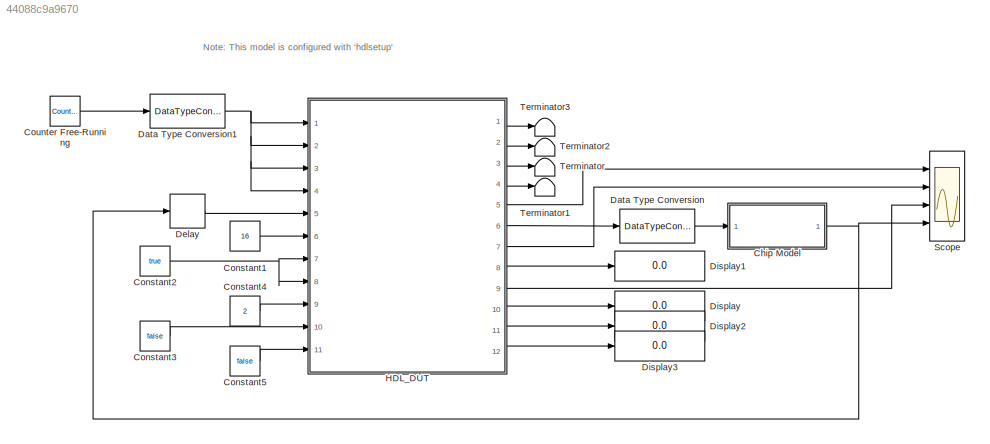
MODEL slx_44088c9a9670
KIND model
CONFIG AbsTol = auto
CONFIG EnableMultiTasking = off
CONFIG FixedStep = auto
CONFIG MaxStep = auto
CONFIG MinStep = auto
CONFIG RelTol = 1e-3
CONFIG SampleTimeConstraint = Unconstrained
CONFIG Solver = FixedStepDiscrete
CONFIG SolverName = FixedStepDiscrete
CONFIG StartTime = 0.0
CONFIG StopTime = 900*1
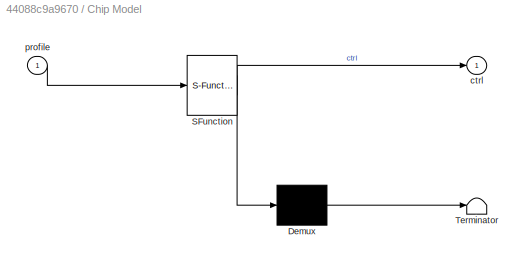
BLOCK [SubSystem] Chip Model
  ErrorFcn = Stateflow.Translate.translate
  PermitHierarchicalResolution = ExplicitOnly
  Ports = [1, 1]
  RequestExecContextInheritance = off
  SFBlockType = MATLAB Function
  TreatAsAtomicUnit = on
BLOCK [Demux] Chip Model/ Demux 
  Outputs = 1
  Ports = [1, 1]
BLOCK [S-Function] Chip Model/ SFunction 
  EnableBusSupport = on
  FunctionName = sf_sfun
  PortCounts = [1 2]
  Ports = [1, 2]
  SFcnIsStateOwnerBlock = off
  SFunctionDeploymentMode = off
  Tag = Stateflow S-Function frequency_hopping 3
BLOCK [Terminator] Chip Model/ Terminator 
BLOCK [Outport] Chip Model/ctrl
  IconDisplay = Port number
BLOCK [Inport] Chip Model/profile
  IconDisplay = Port number
BLOCK [Constant] Constant1
  OutDataTypeStr = fixdt(1,16,0)
  SampleTime = -1
  Value = 16
BLOCK [Constant] Constant2
  OutDataTypeStr = boolean
  SampleTime = -1
  Value = true
BLOCK [Constant] Constant3
  OutDataTypeStr = boolean
  SampleTime = -1
  Value = false
BLOCK [Constant] Constant4
  OutDataTypeStr = uint32
  SampleTime = -1
  Value = 2
BLOCK [Constant] Constant5
  OutDataTypeStr = boolean
  SampleTime = -1
  Value = false
BLOCK [Reference] Counter Free-Running  REF=simulink/Sources/Counter
Free-Running
  Ports = [0, 1]
  SourceBlock = simulink/Sources/Counter\nFree-Running
  SourceProductBaseCode = SL
  SourceProductName = Simulink
  SourceType = Counter Free-Running
BLOCK [DataTypeConversion] Data Type Conversion
  OutDataTypeStr = uint8
  RndMeth = Floor
  SaturateOnIntegerOverflow = off
BLOCK [DataTypeConversion] Data Type Conversion1
  OutDataTypeStr = int16
  RndMeth = Floor
  SaturateOnIntegerOverflow = off
BLOCK [Delay] Delay
  DelayLength = 1
  InputPortMap = u0
  Ports = [1, 1]
BLOCK [Display] Display
  Decimation = 1
  Ports = [1]
BLOCK [Display] Display1
  Decimation = 1
  Ports = [1]
BLOCK [Display] Display2
  Decimation = 1
  Ports = [1]
BLOCK [Display] Display3
  Decimation = 1
  Ports = [1]
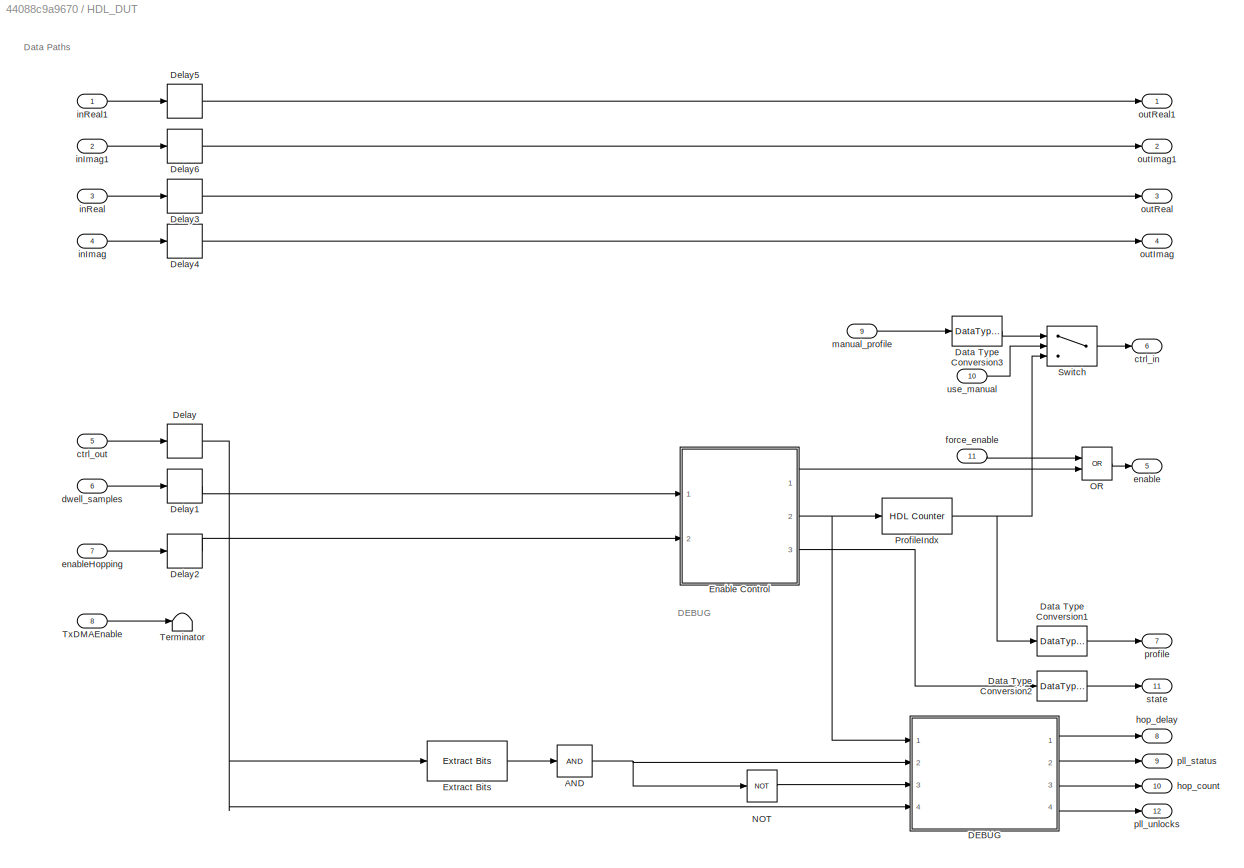
BLOCK [SubSystem] HDL_DUT
  Ports = [11, 12]
  RequestExecContextInheritance = off
  TreatAsAtomicUnit = on
BLOCK [Logic] HDL_DUT/AND
  AllPortsSameDT = off
  Inputs = 1
  OutDataTypeStr = boolean
  Ports = [1, 1]
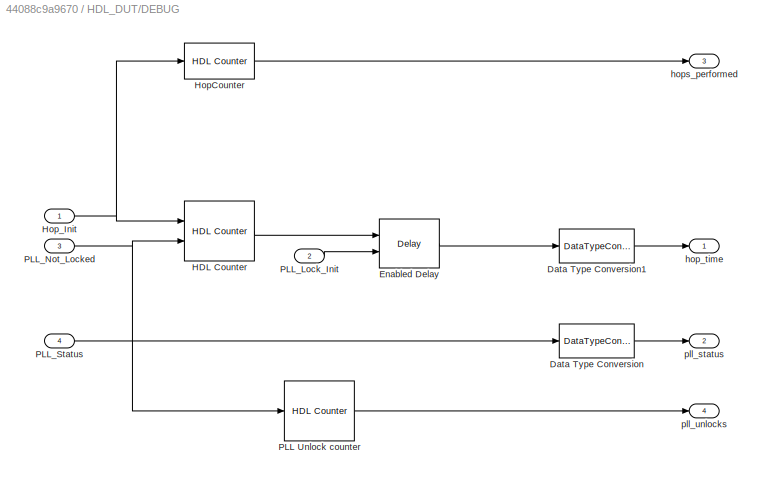
BLOCK [SubSystem] HDL_DUT/DEBUG
  Ports = [4, 4]
  RequestExecContextInheritance = off
BLOCK [DataTypeConversion] HDL_DUT/DEBUG/Data Type Conversion
  OutDataTypeStr = uint32
  RndMeth = Floor
  SaturateOnIntegerOverflow = off
BLOCK [DataTypeConversion] HDL_DUT/DEBUG/Data Type Conversion1
  OutDataTypeStr = uint32
  RndMeth = Floor
  SaturateOnIntegerOverflow = off
BLOCK [Delay] HDL_DUT/DEBUG/Enabled Delay
  DelayLength = 1
  InputPortMap = u0,e6
  Ports = [2, 1]
  ShowEnablePort = on
BLOCK [Reference] HDL_DUT/DEBUG/HDL Counter  REF=hdlsllib/Sources/HDL Counter
  Ports = [2, 1]
  SourceBlock = hdlsllib/Sources/HDL Counter
  SourceProductBaseCode = HD
  SourceProductName = HDL Coder
  SourceType = HDL Counter
BLOCK [Reference] HDL_DUT/DEBUG/HopCounter  REF=hdlsllib/Sources/HDL Counter
  Ports = [1, 1]
  SourceBlock = hdlsllib/Sources/HDL Counter
  SourceProductBaseCode = HD
  SourceProductName = HDL Coder
  SourceType = HDL Counter
BLOCK [Inport] HDL_DUT/DEBUG/Hop_Init
  IconDisplay = Port number
BLOCK [Reference] HDL_DUT/DEBUG/PLL Unlock counter  REF=hdlsllib/Sources/HDL Counter
  Ports = [1, 1]
  SourceBlock = hdlsllib/Sources/HDL Counter
  SourceProductBaseCode = HD
  SourceProductName = HDL Coder
  SourceType = HDL Counter
BLOCK [Inport] HDL_DUT/DEBUG/PLL_Lock_Init
  IconDisplay = Port number
  Port = 2
BLOCK [Inport] HDL_DUT/DEBUG/PLL_Not_Locked
  IconDisplay = Port number
  Port = 3
BLOCK [Inport] HDL_DUT/DEBUG/PLL_Status
  IconDisplay = Port number
  Port = 4
BLOCK [Outport] HDL_DUT/DEBUG/hop_time
  IconDisplay = Port number
BLOCK [Outport] HDL_DUT/DEBUG/hops_performed
  IconDisplay = Port number
  Port = 3
BLOCK [Outport] HDL_DUT/DEBUG/pll_status
  IconDisplay = Port number
  Port = 2
BLOCK [Outport] HDL_DUT/DEBUG/pll_unlocks
  IconDisplay = Port number
  Port = 4
BLOCK [DataTypeConversion] HDL_DUT/Data Type Conversion1
  OutDataTypeStr = uint32
  RndMeth = Floor
  SaturateOnIntegerOverflow = off
BLOCK [DataTypeConversion] HDL_DUT/Data Type Conversion2
  OutDataTypeStr = uint32
  RndMeth = Floor
  SaturateOnIntegerOverflow = off
BLOCK [DataTypeConversion] HDL_DUT/Data Type Conversion3
  OutDataTypeStr = fixdt(0,4,0)
  RndMeth = Floor
BLOCK [Delay] HDL_DUT/Delay
  DelayLength = 1
  InputPortMap = u0
  Ports = [1, 1]
BLOCK [Delay] HDL_DUT/Delay1
  DelayLength = 1
  InputPortMap = u0
  Ports = [1, 1]
BLOCK [Delay] HDL_DUT/Delay2
  DelayLength = 1
  InputPortMap = u0
  Ports = [1, 1]
BLOCK [Delay] HDL_DUT/Delay3
  DelayLength = 1
  InputPortMap = u0
  Ports = [1, 1]
BLOCK [Delay] HDL_DUT/Delay4
  DelayLength = 1
  InputPortMap = u0
  Ports = [1, 1]
BLOCK [Delay] HDL_DUT/Delay5
  DelayLength = 1
  InputPortMap = u0
  Ports = [1, 1]
BLOCK [Delay] HDL_DUT/Delay6
  DelayLength = 1
  InputPortMap = u0
  Ports = [1, 1]
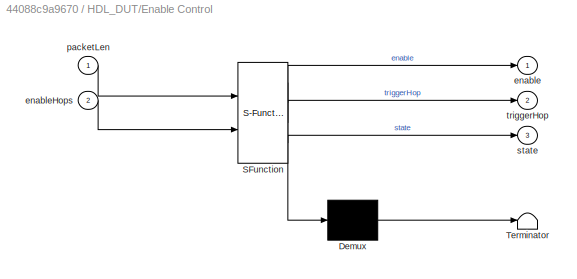
BLOCK [SubSystem] HDL_DUT/Enable Control
  ErrorFcn = Stateflow.Translate.translate
  PermitHierarchicalResolution = ExplicitOnly
  Ports = [2, 3]
  RequestExecContextInheritance = off
  SFBlockType = MATLAB Function
  TreatAsAtomicUnit = on
BLOCK [Demux] HDL_DUT/Enable Control/ Demux 
  Outputs = 1
  Ports = [1, 1]
BLOCK [S-Function] HDL_DUT/Enable Control/ SFunction 
  EnableBusSupport = on
  FunctionName = sf_sfun
  PortCounts = [2 4]
  Ports = [2, 4]
  SFcnIsStateOwnerBlock = off
  SFunctionDeploymentMode = off
  Tag = Stateflow S-Function frequency_hopping 2
BLOCK [Terminator] HDL_DUT/Enable Control/ Terminator 
BLOCK [Outport] HDL_DUT/Enable Control/enable
  IconDisplay = Port number
BLOCK [Inport] HDL_DUT/Enable Control/enableHops
  IconDisplay = Port number
  Port = 2
BLOCK [Inport] HDL_DUT/Enable Control/packetLen
  IconDisplay = Port number
BLOCK [Outport] HDL_DUT/Enable Control/state
  IconDisplay = Port number
  Port = 3
BLOCK [Outport] HDL_DUT/Enable Control/triggerHop
  IconDisplay = Port number
  Port = 2
BLOCK [Reference] HDL_DUT/Extract Bits  REF=simulink/Logic and Bit
Operations/Extract Bits
  Ports = [1, 1]
  SourceBlock = simulink/Logic and Bit\nOperations/Extract Bits
  SourceProductBaseCode = SL
  SourceProductName = Simulink
  SourceType = Extract Bits
BLOCK [Logic] HDL_DUT/NOT
  AllPortsSameDT = off
  IconShape = distinctive
  Operator = NOT
  OutDataTypeStr = boolean
  Ports = [1, 1]
BLOCK [Logic] HDL_DUT/OR
  AllPortsSameDT = off
  Operator = OR
  OutDataTypeStr = boolean
  Ports = [2, 1]
BLOCK [Reference] HDL_DUT/ProfileIndx  REF=hdlsllib/Sources/HDL Counter
  Ports = [1, 1]
  SourceBlock = hdlsllib/Sources/HDL Counter
  SourceProductBaseCode = HD
  SourceProductName = HDL Coder
  SourceType = HDL Counter
BLOCK [Switch] HDL_DUT/Switch
  Criteria = u2 > Threshold
  InputSameDT = off
  SaturateOnIntegerOverflow = off
BLOCK [Terminator] HDL_DUT/Terminator
BLOCK [Inport] HDL_DUT/TxDMAEnable
  IconDisplay = Port number
  OutDataTypeStr = boolean
  Port = 8
BLOCK [Outport] HDL_DUT/ctrl_in
  IconDisplay = Port number
  Port = 6
BLOCK [Inport] HDL_DUT/ctrl_out
  IconDisplay = Port number
  Port = 5
BLOCK [Inport] HDL_DUT/dwell_samples
  IconDisplay = Port number
  Port = 6
BLOCK [Outport] HDL_DUT/enable
  IconDisplay = Port number
  Port = 5
BLOCK [Inport] HDL_DUT/enableHopping
  IconDisplay = Port number
  OutDataTypeStr = boolean
  Port = 7
BLOCK [Inport] HDL_DUT/force_enable
  IconDisplay = Port number
  OutDataTypeStr = boolean
  Port = 11
BLOCK [Outport] HDL_DUT/hop_count
  IconDisplay = Port number
  Port = 10
BLOCK [Outport] HDL_DUT/hop_delay
  IconDisplay = Port number
  Port = 8
BLOCK [Inport] HDL_DUT/inImag
  IconDisplay = Port number
  Port = 4
BLOCK [Inport] HDL_DUT/inImag1
  IconDisplay = Port number
  Port = 2
BLOCK [Inport] HDL_DUT/inReal
  IconDisplay = Port number
  Port = 3
BLOCK [Inport] HDL_DUT/inReal1
  IconDisplay = Port number
BLOCK [Inport] HDL_DUT/manual_profile
  IconDisplay = Port number
  OutDataTypeStr = uint32
  Port = 9
BLOCK [Outport] HDL_DUT/outImag
  IconDisplay = Port number
  Port = 4
BLOCK [Outport] HDL_DUT/outImag1
  IconDisplay = Port number
  Port = 2
BLOCK [Outport] HDL_DUT/outReal
  IconDisplay = Port number
  Port = 3
BLOCK [Outport] HDL_DUT/outReal1
  IconDisplay = Port number
BLOCK [Outport] HDL_DUT/pll_status
  IconDisplay = Port number
  Port = 9
BLOCK [Outport] HDL_DUT/pll_unlocks
  IconDisplay = Port number
  Port = 12
BLOCK [Outport] HDL_DUT/profile
  IconDisplay = Port number
  Port = 7
BLOCK [Outport] HDL_DUT/state
  IconDisplay = Port number
  Port = 11
BLOCK [Inport] HDL_DUT/use_manual
  IconDisplay = Port number
  OutDataTypeStr = boolean
  Port = 10
BLOCK [Scope] Scope
  Floating = off
  NumInputPorts = 4
  Ports = [4]
  ScopeSpecificationString = Simulink.scopes.TimeScopeBlockCfg('CurrentConfiguration', extmgr.ConfigurationSet(extmgr.Configuration('Core','General UI',true),extmgr.Configuration('Core','Source UI',true),extmgr.Configuration('Sources','WiredSimulink',true,'DataLoggingLimitDataPoints',true,'DataLoggingSaveFormat','Array','DataLoggingDecimation','1','DataLoggingDecimateData',true),extmgr.Configuration('Visuals','Time Domain',tr...<+3029ch>
BLOCK [Terminator] Terminator
BLOCK [Terminator] Terminator1
BLOCK [Terminator] Terminator2
BLOCK [Terminator] Terminator3
ANNOTATION (root): Note: This model is configured with ' hdlsetup '
ANNOTATION HDL_DUT: DEBUG
ANNOTATION HDL_DUT: Data Paths
NET Chip Model:1 -> Delay:1, Scope:4
LINE Constant1:1 -> HDL_DUT:6
NET Constant2:1 -> HDL_DUT:7, HDL_DUT:8
LINE Constant3:1 -> HDL_DUT:10
LINE Constant4:1 -> HDL_DUT:9
LINE Constant5:1 -> HDL_DUT:11
LINE Counter Free-Running:1 -> Data Type Conversion1:1
NET Data Type Conversion1:1 -> HDL_DUT:1, HDL_DUT:2, HDL_DUT:3, HDL_DUT:4
LINE Data Type Conversion:1 -> Chip Model:1
LINE Delay:1 -> HDL_DUT:5
NET HDL_DUT/AND:1 -> HDL_DUT/DEBUG:2, HDL_DUT/NOT:1
LINE HDL_DUT/DEBUG/Data Type Conversion1:1 -> HDL_DUT/DEBUG/hop_time:1
LINE HDL_DUT/DEBUG/Data Type Conversion:1 -> HDL_DUT/DEBUG/pll_status:1
LINE HDL_DUT/DEBUG/Enabled Delay:1 -> HDL_DUT/DEBUG/Data Type Conversion1:1
LINE HDL_DUT/DEBUG/HDL Counter:1 -> HDL_DUT/DEBUG/Enabled Delay:1
LINE HDL_DUT/DEBUG/HopCounter:1 -> HDL_DUT/DEBUG/hops_performed:1
NET HDL_DUT/DEBUG/Hop_Init:1 -> HDL_DUT/DEBUG/HDL Counter:1, HDL_DUT/DEBUG/HopCounter:1
LINE HDL_DUT/DEBUG/PLL Unlock counter:1 -> HDL_DUT/DEBUG/pll_unlocks:1
LINE HDL_DUT/DEBUG/PLL_Lock_Init:1 -> HDL_DUT/DEBUG/Enabled Delay:2
NET HDL_DUT/DEBUG/PLL_Not_Locked:1 -> HDL_DUT/DEBUG/HDL Counter:2, HDL_DUT/DEBUG/PLL Unlock counter:1
LINE HDL_DUT/DEBUG/PLL_Status:1 -> HDL_DUT/DEBUG/Data Type Conversion:1
LINE HDL_DUT/DEBUG:1 -> HDL_DUT/hop_delay:1
LINE HDL_DUT/DEBUG:2 -> HDL_DUT/pll_status:1
LINE HDL_DUT/DEBUG:3 -> HDL_DUT/hop_count:1
LINE HDL_DUT/DEBUG:4 -> HDL_DUT/pll_unlocks:1
LINE HDL_DUT/Data Type Conversion1:1 -> HDL_DUT/profile:1
LINE HDL_DUT/Data Type Conversion2:1 -> HDL_DUT/state:1
LINE HDL_DUT/Data Type Conversion3:1 -> HDL_DUT/Switch:1
LINE HDL_DUT/Delay1:1 -> HDL_DUT/Enable Control:1
LINE HDL_DUT/Delay2:1 -> HDL_DUT/Enable Control:2
LINE HDL_DUT/Delay3:1 -> HDL_DUT/outReal:1
LINE HDL_DUT/Delay4:1 -> HDL_DUT/outImag:1
LINE HDL_DUT/Delay5:1 -> HDL_DUT/outReal1:1
LINE HDL_DUT/Delay6:1 -> HDL_DUT/outImag1:1
NET HDL_DUT/Delay:1 -> HDL_DUT/DEBUG:4, HDL_DUT/Extract Bits:1
LINE HDL_DUT/Enable Control:1 -> HDL_DUT/OR:2
NET HDL_DUT/Enable Control:2 -> HDL_DUT/DEBUG:1, HDL_DUT/ProfileIndx:1
LINE HDL_DUT/Enable Control:3 -> HDL_DUT/Data Type Conversion2:1
LINE HDL_DUT/Extract Bits:1 -> HDL_DUT/AND:1
LINE HDL_DUT/NOT:1 -> HDL_DUT/DEBUG:3
LINE HDL_DUT/OR:1 -> HDL_DUT/enable:1
NET HDL_DUT/ProfileIndx:1 -> HDL_DUT/Data Type Conversion1:1, HDL_DUT/Switch:3
LINE HDL_DUT/Switch:1 -> HDL_DUT/ctrl_in:1
LINE HDL_DUT/TxDMAEnable:1 -> HDL_DUT/Terminator:1
LINE HDL_DUT/ctrl_out:1 -> HDL_DUT/Delay:1
LINE HDL_DUT/dwell_samples:1 -> HDL_DUT/Delay1:1
LINE HDL_DUT/enableHopping:1 -> HDL_DUT/Delay2:1
LINE HDL_DUT/force_enable:1 -> HDL_DUT/OR:1
LINE HDL_DUT/inImag1:1 -> HDL_DUT/Delay6:1
LINE HDL_DUT/inImag:1 -> HDL_DUT/Delay4:1
LINE HDL_DUT/inReal1:1 -> HDL_DUT/Delay5:1
LINE HDL_DUT/inReal:1 -> HDL_DUT/Delay3:1
LINE HDL_DUT/manual_profile:1 -> HDL_DUT/Data Type Conversion3:1
LINE HDL_DUT/use_manual:1 -> HDL_DUT/Switch:2
LINE HDL_DUT:1 -> Terminator3:1
LINE HDL_DUT:10 -> Display:1
LINE HDL_DUT:11 -> Display2:1
LINE HDL_DUT:12 -> Display3:1
LINE HDL_DUT:2 -> Terminator2:1
LINE HDL_DUT:3 -> Terminator:1
LINE HDL_DUT:4 -> Terminator1:1
LINE HDL_DUT:5 -> Scope:1
LINE HDL_DUT:6 -> Data Type Conversion:1
LINE HDL_DUT:7 -> Scope:2
LINE HDL_DUT:8 -> Display1:1
LINE HDL_DUT:9 -> Scope:3
note: NET lines group one-source signal fan-out (src -> all destinations, sorted); 1:1 wires keep LINE
CHART HDL_DUT/Enable Control states=1 transitions=1
  STATE_LABEL 'eML_blk_kernel()'
  STATE_LABEL 'SCRIPT:\nfunction [enable,triggerHop,state] = fcn(packetLen, enableHops)\n\n\npersistent counter counterLock\n\nif isempty(counter)\n    counter = uint16(0);\n    counterLock = uint16(0);\nend\n\nwaitSamples = 20;\n\n% Start hop convergence wait\nif counter == uint16(0) && enableHops\n    counter = uint16(packetLen);\n    counterLock = uint16(waitSamples);\n    triggerHop = false;\n    enable = false;\n    state = u...<+624ch>'
CHART Chip Model states=1 transitions=1
  STATE_LABEL 'eML_blk_kernel()'
  STATE_LABEL 'SCRIPT:\nfunction ctrl = fcn(profile)\n\npersistent lastProfile counter\n\nif isempty(lastProfile)\n    lastProfile = uint8(0);\n    counter = 0;\nend\n\n\nif counter>=0\n    counter = counter - 1;\n    ctrl = uint8(0);\nelse\n    ctrl = uint8(2^8-1);\nend\n\nif profile~=lastProfile\n    lastProfile = profile;\n    ctrl = uint8(0);\n    counter = 32;\nend\n\n'
